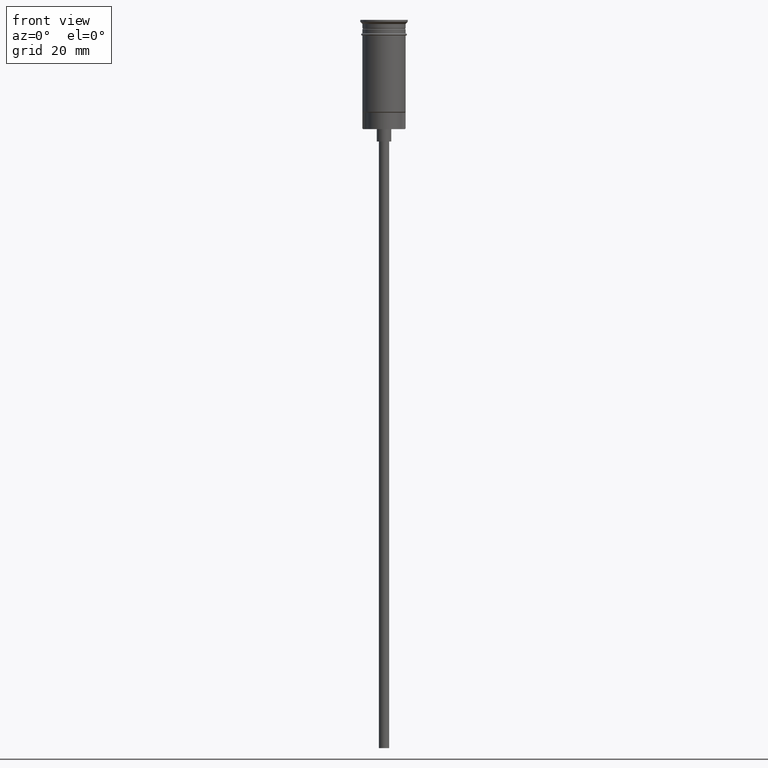
[diagram: clean part render]
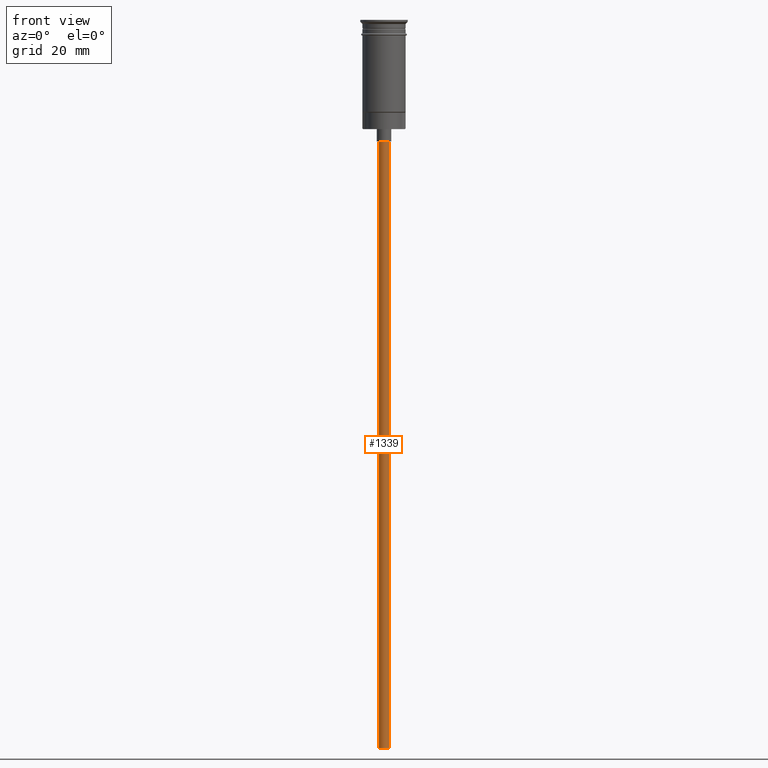
[diagram: same view with one face highlighted and labeled with its STEP entity id]
A machine part, front view. The second image highlights one B-rep face of the part: STEP entity #1339.
In plain terms, the highlighted cylindrical surface (edge-blend (fillet) strip) has radius 1.25 mm, axis along (-0, -0, 1).
Its self-contained STEP definition (entity closure, byte-faithful):
#9 = DIRECTION ( 'NONE',  ( -0.000000000000000000, -0.000000000000000000, 1.000000000000000000 ) ) ;
#10 = EDGE_LOOP ( 'NONE', ( #467, #1325, #519, #70 ) ) ;
#70 = ORIENTED_EDGE ( 'NONE', *, *, #1222, .T. ) ;
#76 = DIRECTION ( 'NONE',  ( -0.000000000000000000, -0.000000000000000000, 1.000000000000000000 ) ) ;
#78 = EDGE_CURVE ( 'NONE', #1197, #1344, #168, .T. ) ;
#147 = VECTOR ( 'NONE', #9, 1000.000000000000000 ) ;
#168 = LINE ( 'NONE', #401, #147 ) ;
#217 = DIRECTION ( 'NONE',  ( -1.000000000000000000, 0.000000000000000000, 0.000000000000000000 ) ) ;
#248 = FACE_OUTER_BOUND ( 'NONE', #10, .T. ) ;
#256 = EDGE_CURVE ( 'NONE', #967, #1160, #1181, .T. ) ;
#358 = AXIS2_PLACEMENT_3D ( 'NONE', #1518, #1479, #373 ) ;
#373 = DIRECTION ( 'NONE',  ( 1.000000000000000000, 0.000000000000000000, 0.000000000000000000 ) ) ;
#392 = DIRECTION ( 'NONE',  ( -1.000000000000000000, 0.000000000000000000, 0.000000000000000000 ) ) ;
#401 = CARTESIAN_POINT ( 'NONE',  ( -1.250000000000000000, 1.530808498934191571E-16, -176.5000000000000000 ) ) ;
#467 = ORIENTED_EDGE ( 'NONE', *, *, #78, .F. ) ;
#519 = ORIENTED_EDGE ( 'NONE', *, *, #256, .T. ) ;
#585 = VECTOR ( 'NONE', #76, 1000.000000000000000 ) ;
#588 = CIRCLE ( 'NONE', #1122, 1.250000000000000000 ) ;
#749 = CARTESIAN_POINT ( 'NONE',  ( -1.250000000000000000, 1.530808498934191571E-16, -29.50000000000000000 ) ) ;
#776 = CARTESIAN_POINT ( 'NONE',  ( 0.000000000000000000, 0.000000000000000000, -176.5000000000000000 ) ) ;
#826 = CARTESIAN_POINT ( 'NONE',  ( 1.250000000000000000, 0.000000000000000000, -176.5000000000000000 ) ) ;
#845 = CARTESIAN_POINT ( 'NONE',  ( 0.000000000000000000, 0.000000000000000000, -29.50000000000000000 ) ) ;
#967 = VERTEX_POINT ( 'NONE', #1004 ) ;
#974 = EDGE_CURVE ( 'NONE', #967, #1197, #1412, .T. ) ;
#977 = DIRECTION ( 'NONE',  ( 0.000000000000000000, 0.000000000000000000, -1.000000000000000000 ) ) ;
#1004 = CARTESIAN_POINT ( 'NONE',  ( 1.250000000000000000, 0.000000000000000000, -176.5000000000000000 ) ) ;
#1098 = AXIS2_PLACEMENT_3D ( 'NONE', #776, #1499, #392 ) ;
#1122 = AXIS2_PLACEMENT_3D ( 'NONE', #845, #977, #217 ) ;
#1160 = VERTEX_POINT ( 'NONE', #1562 ) ;
#1181 = LINE ( 'NONE', #826, #585 ) ;
#1197 = VERTEX_POINT ( 'NONE', #1437 ) ;
#1222 = EDGE_CURVE ( 'NONE', #1160, #1344, #588, .T. ) ;
#1325 = ORIENTED_EDGE ( 'NONE', *, *, #974, .F. ) ;
#1339 = ADVANCED_FACE ( 'NONE', ( #248 ), #1365, .T. ) ;
#1344 = VERTEX_POINT ( 'NONE', #749 ) ;
#1365 = CYLINDRICAL_SURFACE ( 'NONE', #358, 1.250000000000000000 ) ;
#1412 = CIRCLE ( 'NONE', #1098, 1.250000000000000000 ) ;
#1437 = CARTESIAN_POINT ( 'NONE',  ( -1.250000000000000000, 1.530808498934191571E-16, -176.5000000000000000 ) ) ;
#1479 = DIRECTION ( 'NONE',  ( -0.000000000000000000, -0.000000000000000000, 1.000000000000000000 ) ) ;
#1499 = DIRECTION ( 'NONE',  ( 0.000000000000000000, 0.000000000000000000, -1.000000000000000000 ) ) ;
#1518 = CARTESIAN_POINT ( 'NONE',  ( 0.000000000000000000, 0.000000000000000000, -176.5000000000000000 ) ) ;
#1562 = CARTESIAN_POINT ( 'NONE',  ( 1.250000000000000000, 0.000000000000000000, -29.50000000000000000 ) ) ;